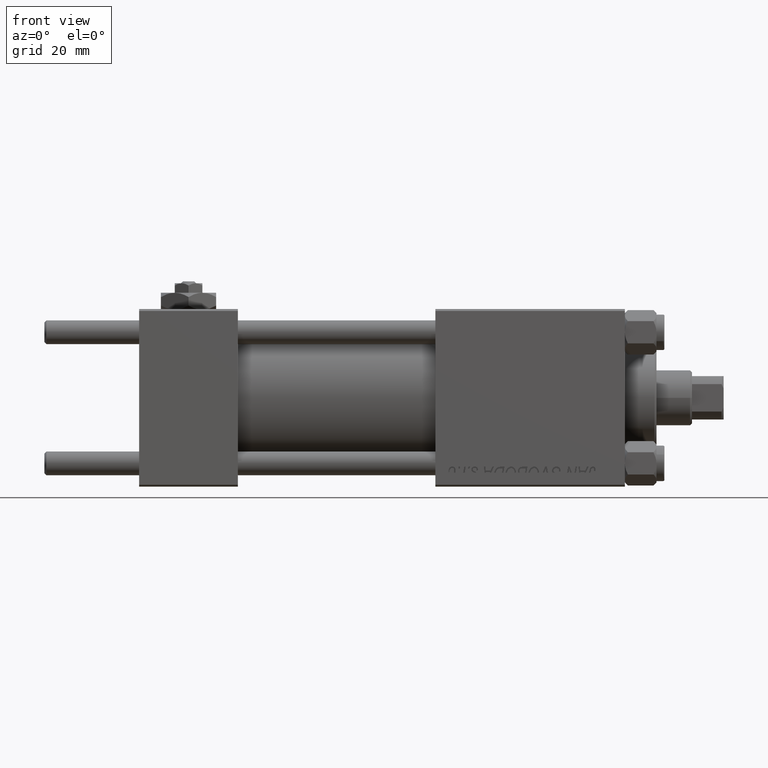
[diagram: clean part render]
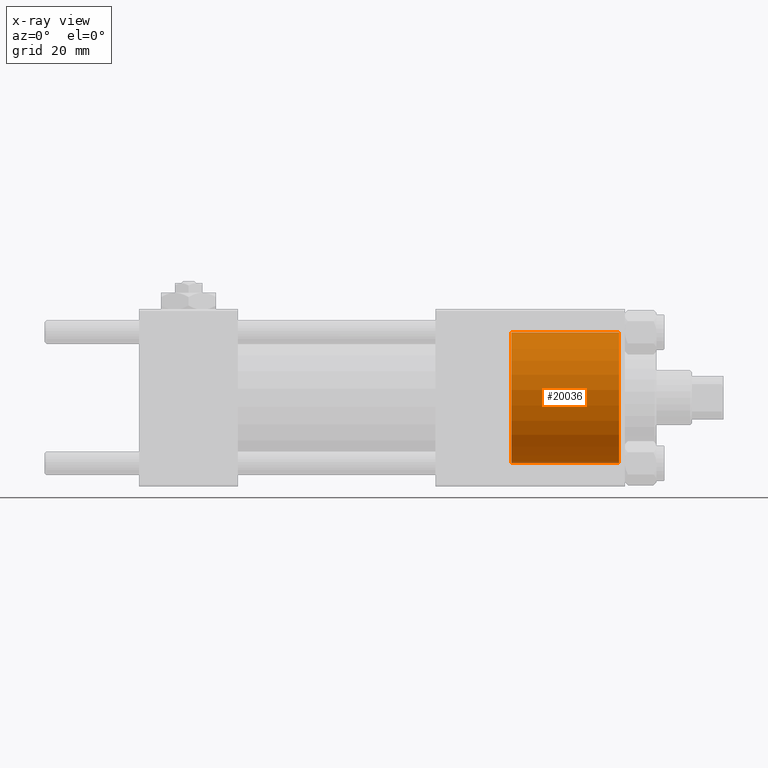
[diagram: x-ray — body ghosted, one internal face saturated and labeled with its STEP entity id]
A machine part, front view, then the same camera in x-ray: the body is ghosted and one INTERNAL B-rep face — a face not visible from any outside direction — is saturated and labeled: STEP entity #20036.
In plain terms, the highlighted cylindrical surface (partial cylindrical patch) has radius 16.5 mm, axis along (1, 0, 0).
Its self-contained STEP definition (entity closure, byte-faithful):
#492 = CIRCLE ( 'NONE', #25470, 16.50000000000000000 ) ;
#3881 = CARTESIAN_POINT ( 'NONE',  ( 121.5000000000000142, 2.020667218593133100E-15, 16.50000000000000000 ) ) ;
#4466 = CIRCLE ( 'NONE', #29453, 16.50000000000000000 ) ;
#9213 = VECTOR ( 'NONE', #48422, 1000.000000000000000 ) ;
#9422 = EDGE_CURVE ( 'NONE', #36581, #33407, #4466, .T. ) ;
#11299 = ORIENTED_EDGE ( 'NONE', *, *, #32000, .T. ) ;
#11825 = DIRECTION ( 'NONE',  ( 1.000000000000000000, 0.000000000000000000, 0.000000000000000000 ) ) ;
#13996 = EDGE_CURVE ( 'NONE', #30853, #14143, #492, .T. ) ;
#14143 = VERTEX_POINT ( 'NONE', #30939 ) ;
#14970 = DIRECTION ( 'NONE',  ( 0.000000000000000000, 0.000000000000000000, -1.000000000000000000 ) ) ;
#15212 = DIRECTION ( 'NONE',  ( 1.000000000000000000, -0.000000000000000000, -0.000000000000000000 ) ) ;
#16698 = EDGE_CURVE ( 'NONE', #33407, #14143, #17329, .T. ) ;
#17329 = LINE ( 'NONE', #20719, #33845 ) ;
#18699 = CARTESIAN_POINT ( 'NONE',  ( 94.30000000000001137, 2.020667218593133100E-15, 16.50000000000000000 ) ) ;
#20036 = ADVANCED_FACE ( 'NONE', ( #22791 ), #23300, .F. ) ;
#20719 = CARTESIAN_POINT ( 'NONE',  ( 94.30000000000001137, 0.000000000000000000, -16.50000000000000000 ) ) ;
#20862 = DIRECTION ( 'NONE',  ( 1.000000000000000000, 0.000000000000000000, 0.000000000000000000 ) ) ;
#22791 = FACE_OUTER_BOUND ( 'NONE', #45689, .T. ) ;
#23300 = CYLINDRICAL_SURFACE ( 'NONE', #45639, 16.50000000000000000 ) ;
#23831 = CARTESIAN_POINT ( 'NONE',  ( 94.30000000000001137, 0.000000000000000000, 0.000000000000000000 ) ) ;
#24827 = CARTESIAN_POINT ( 'NONE',  ( 94.30000000000001137, 0.000000000000000000, -16.50000000000000000 ) ) ;
#25470 = AXIS2_PLACEMENT_3D ( 'NONE', #26274, #20862, #49037 ) ;
#26274 = CARTESIAN_POINT ( 'NONE',  ( 121.5000000000000142, 0.000000000000000000, 0.000000000000000000 ) ) ;
#27461 = DIRECTION ( 'NONE',  ( 0.000000000000000000, 0.000000000000000000, -1.000000000000000000 ) ) ;
#28862 = CARTESIAN_POINT ( 'NONE',  ( 94.30000000000001137, 2.020667218593133100E-15, 16.50000000000000000 ) ) ;
#29453 = AXIS2_PLACEMENT_3D ( 'NONE', #23831, #11825, #14970 ) ;
#30279 = ORIENTED_EDGE ( 'NONE', *, *, #13996, .T. ) ;
#30853 = VERTEX_POINT ( 'NONE', #3881 ) ;
#30939 = CARTESIAN_POINT ( 'NONE',  ( 121.5000000000000142, 0.000000000000000000, -16.50000000000000000 ) ) ;
#32000 = EDGE_CURVE ( 'NONE', #36581, #30853, #40601, .T. ) ;
#33407 = VERTEX_POINT ( 'NONE', #24827 ) ;
#33845 = VECTOR ( 'NONE', #45217, 1000.000000000000000 ) ;
#34168 = ORIENTED_EDGE ( 'NONE', *, *, #9422, .F. ) ;
#36581 = VERTEX_POINT ( 'NONE', #18699 ) ;
#39212 = CARTESIAN_POINT ( 'NONE',  ( 94.30000000000001137, 0.000000000000000000, 0.000000000000000000 ) ) ;
#40601 = LINE ( 'NONE', #28862, #9213 ) ;
#45217 = DIRECTION ( 'NONE',  ( 1.000000000000000000, -0.000000000000000000, -0.000000000000000000 ) ) ;
#45639 = AXIS2_PLACEMENT_3D ( 'NONE', #39212, #15212, #27461 ) ;
#45689 = EDGE_LOOP ( 'NONE', ( #34168, #11299, #30279, #48727 ) ) ;
#48422 = DIRECTION ( 'NONE',  ( 1.000000000000000000, -0.000000000000000000, -0.000000000000000000 ) ) ;
#48727 = ORIENTED_EDGE ( 'NONE', *, *, #16698, .F. ) ;
#49037 = DIRECTION ( 'NONE',  ( 0.000000000000000000, 0.000000000000000000, 1.000000000000000000 ) ) ;